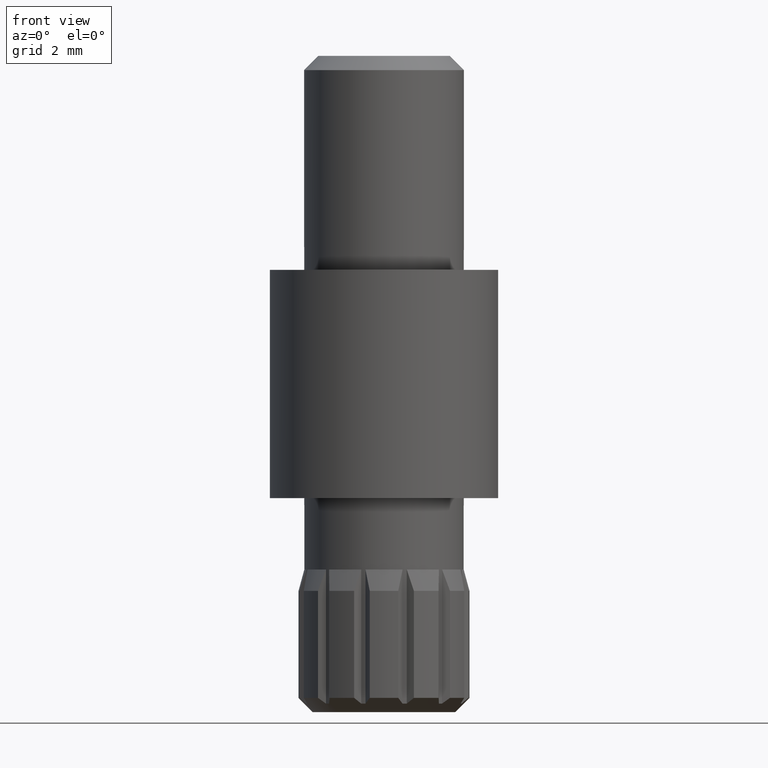
[diagram: clean part render]
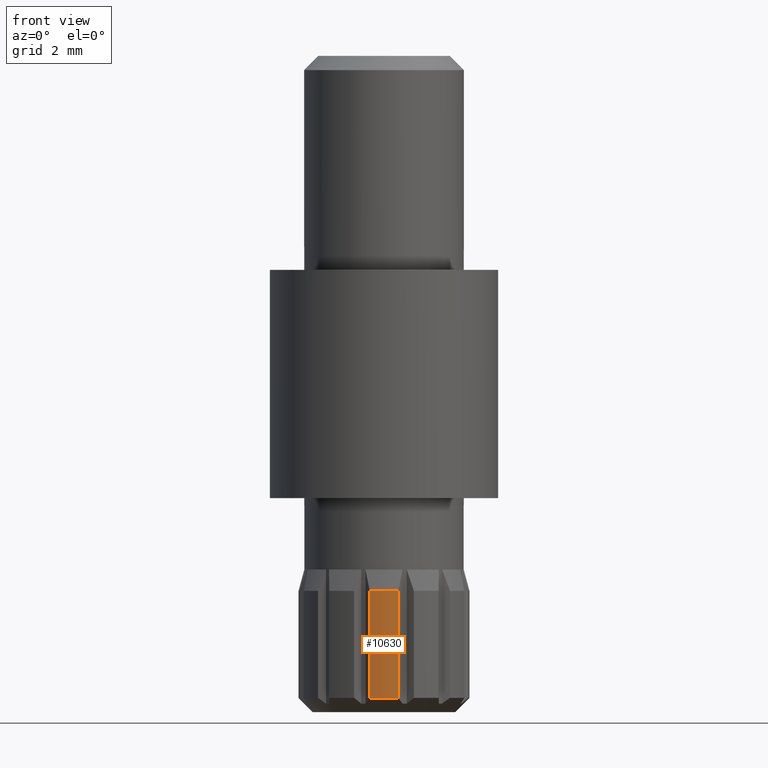
[diagram: same view with one face highlighted and labeled with its STEP entity id]
A machine part, front view. The second image highlights one B-rep face of the part: STEP entity #10630.
In plain terms, the highlighted cylindrical surface (partial cylindrical patch) has radius 3 mm, axis along (0, 0, -1).
Its self-contained STEP definition (entity closure, byte-faithful):
#273 = DIRECTION ( 'NONE',  ( -0.000000000000000000, -0.000000000000000000, -1.000000000000000000 ) ) ;
#374 = VECTOR ( 'NONE', #5077, 1000.000000000000000 ) ;
#1238 = FACE_OUTER_BOUND ( 'NONE', #10969, .T. ) ;
#1259 = ORIENTED_EDGE ( 'NONE', *, *, #11810, .F. ) ;
#1488 = EDGE_CURVE ( 'NONE', #8183, #9299, #4133, .T. ) ;
#1578 = CARTESIAN_POINT ( 'NONE',  ( 0.5000000000000000000, -2.958039891549808065, 0.4999999999999998890 ) ) ;
#1722 = ORIENTED_EDGE ( 'NONE', *, *, #6645, .T. ) ;
#1804 = DIRECTION ( 'NONE',  ( -0.000000000000000000, -0.000000000000000000, -1.000000000000000000 ) ) ;
#2543 = CARTESIAN_POINT ( 'NONE',  ( -0.4999999999999998890, -2.958039891549808953, 4.250000000000000000 ) ) ;
#3339 = LINE ( 'NONE', #12620, #374 ) ;
#4007 = VERTEX_POINT ( 'NONE', #1578 ) ;
#4133 = CIRCLE ( 'NONE', #10203, 3.000000000000000888 ) ;
#4213 = DIRECTION ( 'NONE',  ( -1.000000000000000000, 0.000000000000000000, 0.000000000000000000 ) ) ;
#5077 = DIRECTION ( 'NONE',  ( 0.000000000000000000, 0.000000000000000000, -1.000000000000000000 ) ) ;
#5178 = DIRECTION ( 'NONE',  ( 0.000000000000000000, 0.000000000000000000, -1.000000000000000000 ) ) ;
#6013 = VECTOR ( 'NONE', #5178, 1000.000000000000000 ) ;
#6109 = CIRCLE ( 'NONE', #11467, 3.000000000000000000 ) ;
#6353 = AXIS2_PLACEMENT_3D ( 'NONE', #11124, #9135, #4213 ) ;
#6645 = EDGE_CURVE ( 'NONE', #9299, #10839, #8481, .T. ) ;
#7304 = DIRECTION ( 'NONE',  ( -1.000000000000000000, 0.000000000000000000, 0.000000000000000000 ) ) ;
#7823 = CARTESIAN_POINT ( 'NONE',  ( 0.000000000000000000, 0.000000000000000000, 4.250000000000000000 ) ) ;
#8066 = EDGE_CURVE ( 'NONE', #4007, #10839, #6109, .T. ) ;
#8183 = VERTEX_POINT ( 'NONE', #12619 ) ;
#8246 = CARTESIAN_POINT ( 'NONE',  ( 0.000000000000000000, 0.000000000000000000, 0.4999999999999998890 ) ) ;
#8281 = CARTESIAN_POINT ( 'NONE',  ( -0.4999999999999998890, -2.958039891549808509, 5.000000000000000000 ) ) ;
#8481 = LINE ( 'NONE', #8281, #6013 ) ;
#8637 = CYLINDRICAL_SURFACE ( 'NONE', #6353, 3.000000000000000444 ) ;
#9045 = CARTESIAN_POINT ( 'NONE',  ( -0.4999999999999998890, -2.958039891549808953, 0.4999999999999998890 ) ) ;
#9135 = DIRECTION ( 'NONE',  ( 0.000000000000000000, 0.000000000000000000, -1.000000000000000000 ) ) ;
#9299 = VERTEX_POINT ( 'NONE', #2543 ) ;
#9877 = DIRECTION ( 'NONE',  ( -1.000000000000000000, 0.000000000000000000, 0.000000000000000000 ) ) ;
#10203 = AXIS2_PLACEMENT_3D ( 'NONE', #7823, #1804, #9877 ) ;
#10630 = ADVANCED_FACE ( 'NONE', ( #1238 ), #8637, .T. ) ;
#10839 = VERTEX_POINT ( 'NONE', #9045 ) ;
#10969 = EDGE_LOOP ( 'NONE', ( #12634, #1722, #10971, #1259 ) ) ;
#10971 = ORIENTED_EDGE ( 'NONE', *, *, #8066, .F. ) ;
#11124 = CARTESIAN_POINT ( 'NONE',  ( 0.000000000000000000, 0.000000000000000000, 5.000000000000000000 ) ) ;
#11467 = AXIS2_PLACEMENT_3D ( 'NONE', #8246, #273, #7304 ) ;
#11810 = EDGE_CURVE ( 'NONE', #8183, #4007, #3339, .T. ) ;
#12619 = CARTESIAN_POINT ( 'NONE',  ( 0.4999999999999993339, -2.958039891549809397, 4.250000000000000000 ) ) ;
#12620 = CARTESIAN_POINT ( 'NONE',  ( 0.5000000000000001110, -2.958039891549808509, 5.000000000000000000 ) ) ;
#12634 = ORIENTED_EDGE ( 'NONE', *, *, #1488, .T. ) ;